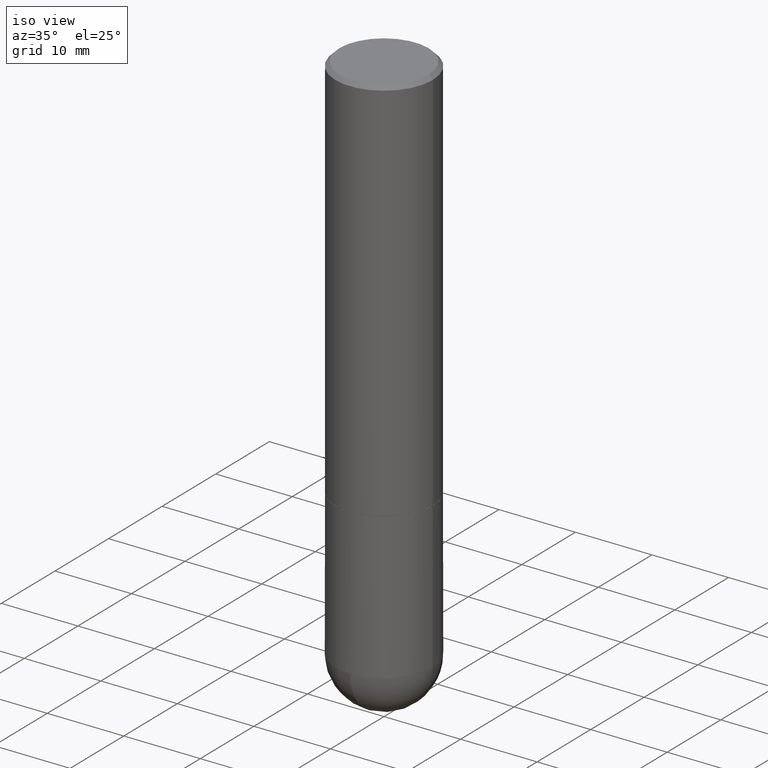
[diagram: clean part render]
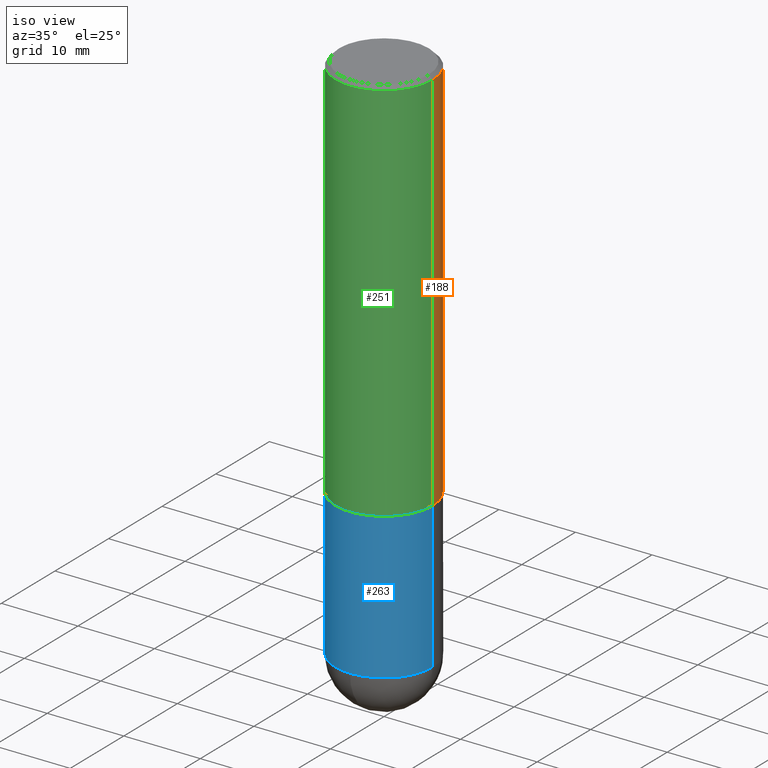
[diagram: same view with three faces highlighted in distinct colors, each labeled with its STEP entity id]
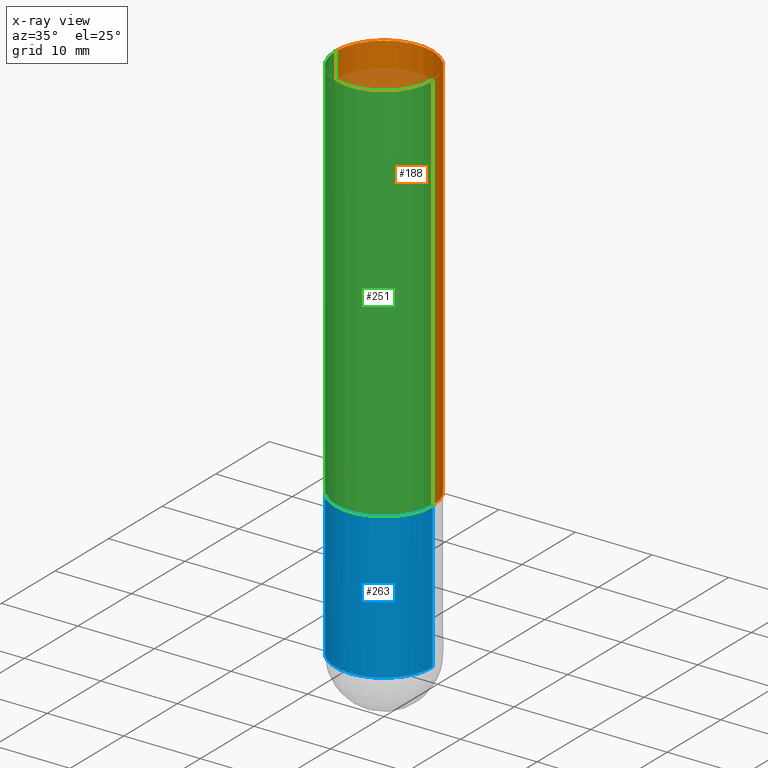
[diagram: x-ray of the same camera — body ghosted, the three highlighted faces saturated]
A machine part, iso view with three faces highlighted in distinct colors.
The next image is the same camera in x-ray (body ghosted, the three faces saturated) — at least one of them is partly hidden behind the body in this view.
Their STEP definitions:

[orange] entity #188 — the highlighted cylindrical surface (partial cylindrical patch) has radius 6.35 mm, axis along (-0, 0, 1).
#6 = EDGE_LOOP ( 'NONE', ( #29, #325, #299, #410 ) ) ;
#25 = CIRCLE ( 'NONE', #266, 0.2500000000000002776 ) ;
#29 = ORIENTED_EDGE ( 'NONE', *, *, #110, .T. ) ;
#40 = DIRECTION ( 'NONE',  ( -2.445468806185136597E-29, 3.491481338843145583E-15, 1.000000000000000000 ) ) ;
#41 = CARTESIAN_POINT ( 'NONE',  ( 0.2500000000000002776, -8.725211865769017202E-15, -1.999000000000000110 ) ) ;
#62 = EDGE_CURVE ( 'NONE', #120, #309, #204, .T. ) ;
#67 = VERTEX_POINT ( 'NONE', #135 ) ;
#73 = DIRECTION ( 'NONE',  ( 1.000000000000000000, -6.982962677686267499E-15, 4.876176775795936353E-29 ) ) ;
#78 = FACE_OUTER_BOUND ( 'NONE', #6, .T. ) ;
#79 = EDGE_CURVE ( 'NONE', #67, #229, #239, .T. ) ;
#104 = CARTESIAN_POINT ( 'NONE',  ( 0.2500000000000001110, -1.745740669421567664E-15, 1.219044193948984649E-29 ) ) ;
#110 = EDGE_CURVE ( 'NONE', #120, #67, #25, .T. ) ;
#112 = DIRECTION ( 'NONE',  ( -2.445468806185136597E-29, 3.491481338843145583E-15, 1.000000000000000000 ) ) ;
#120 = VERTEX_POINT ( 'NONE', #41 ) ;
#135 = CARTESIAN_POINT ( 'NONE',  ( -0.2500000000000002220, -1.748293572161901516E-15, -1.999000000000000110 ) ) ;
#178 = CARTESIAN_POINT ( 'NONE',  ( 0.000000000000000000, 0.000000000000000000, 0.000000000000000000 ) ) ;
#188 = ADVANCED_FACE ( 'NONE', ( #78 ), #373, .T. ) ;
#196 = VECTOR ( 'NONE', #199, 39.37007874015748143 ) ;
#199 = DIRECTION ( 'NONE',  ( -2.445468806185136877E-29, 3.491481338843145188E-15, 1.000000000000000000 ) ) ;
#204 = LINE ( 'NONE', #104, #196 ) ;
#214 = CARTESIAN_POINT ( 'NONE',  ( -0.2500000000000000000, 1.675911042644703577E-15, -0.02000000000000005593 ) ) ;
#220 = DIRECTION ( 'NONE',  ( -2.445468806185136597E-29, 3.491481338843145583E-15, 1.000000000000000000 ) ) ;
#229 = VERTEX_POINT ( 'NONE', #214 ) ;
#238 = CARTESIAN_POINT ( 'NONE',  ( 4.888492143564088712E-29, -6.979471196347448158E-15, -1.999000000000000110 ) ) ;
#239 = LINE ( 'NONE', #331, #336 ) ;
#248 = CARTESIAN_POINT ( 'NONE',  ( 4.890937612370287172E-31, -6.982962677686310098E-17, -0.02000000000000005593 ) ) ;
#256 = AXIS2_PLACEMENT_3D ( 'NONE', #178, #112, #73 ) ;
#265 = DIRECTION ( 'NONE',  ( -2.445468806185136877E-29, 3.491481338843145188E-15, 1.000000000000000000 ) ) ;
#266 = AXIS2_PLACEMENT_3D ( 'NONE', #238, #40, #335 ) ;
#297 = CIRCLE ( 'NONE', #332, 0.2500000000000000000 ) ;
#299 = ORIENTED_EDGE ( 'NONE', *, *, #302, .F. ) ;
#302 = EDGE_CURVE ( 'NONE', #309, #229, #297, .T. ) ;
#309 = VERTEX_POINT ( 'NONE', #390 ) ;
#325 = ORIENTED_EDGE ( 'NONE', *, *, #79, .T. ) ;
#331 = CARTESIAN_POINT ( 'NONE',  ( -0.2500000000000001110, 1.776356839400251254E-15, -1.229733772563727146E-29 ) ) ;
#332 = AXIS2_PLACEMENT_3D ( 'NONE', #248, #220, #344 ) ;
#335 = DIRECTION ( 'NONE',  ( 1.000000000000000000, -6.982962677686266711E-15, 0.000000000000000000 ) ) ;
#336 = VECTOR ( 'NONE', #265, 39.37007874015748143 ) ;
#344 = DIRECTION ( 'NONE',  ( 1.000000000000000000, -6.982962677686266711E-15, 0.000000000000000000 ) ) ;
#373 = CYLINDRICAL_SURFACE ( 'NONE', #256, 0.2500000000000001110 ) ;
#390 = CARTESIAN_POINT ( 'NONE',  ( 0.2500000000000000000, -1.784954126219746189E-15, -0.02000000000000005593 ) ) ;
#410 = ORIENTED_EDGE ( 'NONE', *, *, #62, .F. ) ;

[blue] entity #263 — the highlighted cylindrical surface (partial cylindrical patch) has radius 6.35 mm, axis along (-0, 0, 1).
#1 = EDGE_CURVE ( 'NONE', #34, #349, #31, .T. ) ;
#9 = CARTESIAN_POINT ( 'NONE',  ( 6.725039217009124520E-29, -9.601573681818649859E-15, -2.750000000000000000 ) ) ;
#10 = ORIENTED_EDGE ( 'NONE', *, *, #87, .T. ) ;
#18 = LINE ( 'NONE', #401, #145 ) ;
#19 = DIRECTION ( 'NONE',  ( -2.445468806185136597E-29, 3.491481338843145583E-15, 1.000000000000000000 ) ) ;
#31 = CIRCLE ( 'NONE', #393, 0.2500000000000000000 ) ;
#34 = VERTEX_POINT ( 'NONE', #387 ) ;
#42 = FACE_OUTER_BOUND ( 'NONE', #64, .T. ) ;
#45 = DIRECTION ( 'NONE',  ( 1.000000000000000000, -6.982962677686266711E-15, 4.876176775795935793E-29 ) ) ;
#64 = EDGE_LOOP ( 'NONE', ( #228, #168, #10, #159, #129 ) ) ;
#71 = DIRECTION ( 'NONE',  ( -2.445468806185136597E-29, 3.491481338843145583E-15, 1.000000000000000000 ) ) ;
#72 = CIRCLE ( 'NONE', #116, 0.2500000000000000000 ) ;
#75 = CARTESIAN_POINT ( 'NONE',  ( -0.2500000000000000000, -6.515911340352222020E-15, -2.750000000000000000 ) ) ;
#83 = CARTESIAN_POINT ( 'NONE',  ( 0.000000000000000000, 0.000000000000000000, 0.000000000000000000 ) ) ;
#87 = EDGE_CURVE ( 'NONE', #231, #121, #72, .T. ) ;
#96 = AXIS2_PLACEMENT_3D ( 'NONE', #246, #367, #153 ) ;
#107 = CARTESIAN_POINT ( 'NONE',  ( -0.2500000000000000000, 1.776356839400250465E-15, -1.229733772563726445E-29 ) ) ;
#111 = DIRECTION ( 'NONE',  ( -2.445468806185136877E-29, 3.491481338843145188E-15, 1.000000000000000000 ) ) ;
#116 = AXIS2_PLACEMENT_3D ( 'NONE', #9, #71, #354 ) ;
#121 = VERTEX_POINT ( 'NONE', #388 ) ;
#129 = ORIENTED_EDGE ( 'NONE', *, *, #1, .F. ) ;
#145 = VECTOR ( 'NONE', #111, 39.37007874015748143 ) ;
#153 = DIRECTION ( 'NONE',  ( 1.000000000000000000, -6.982962677686262766E-15, 0.000000000000000000 ) ) ;
#159 = ORIENTED_EDGE ( 'NONE', *, *, #170, .T. ) ;
#168 = ORIENTED_EDGE ( 'NONE', *, *, #395, .T. ) ;
#170 = EDGE_CURVE ( 'NONE', #121, #349, #18, .T. ) ;
#175 = EDGE_CURVE ( 'NONE', #328, #34, #397, .T. ) ;
#192 = AXIS2_PLACEMENT_3D ( 'NONE', #83, #19, #45 ) ;
#228 = ORIENTED_EDGE ( 'NONE', *, *, #175, .F. ) ;
#231 = VERTEX_POINT ( 'NONE', #340 ) ;
#246 = CARTESIAN_POINT ( 'NONE',  ( 6.725039217009124520E-29, -9.601573681818649859E-15, -2.750000000000000000 ) ) ;
#263 = ADVANCED_FACE ( 'NONE', ( #42 ), #315, .T. ) ;
#270 = CARTESIAN_POINT ( 'NONE',  ( 4.890937612370273754E-29, -6.982962677686291954E-15, -2.000000000000000444 ) ) ;
#288 = DIRECTION ( 'NONE',  ( -2.445468806185136877E-29, 3.491481338843145188E-15, 1.000000000000000000 ) ) ;
#290 = CIRCLE ( 'NONE', #96, 0.2500000000000000000 ) ;
#315 = CYLINDRICAL_SURFACE ( 'NONE', #192, 0.2500000000000000000 ) ;
#328 = VERTEX_POINT ( 'NONE', #75 ) ;
#340 = CARTESIAN_POINT ( 'NONE',  ( -1.776356839400184989E-15, -0.2500000000000098810, -2.749999999999998668 ) ) ;
#345 = CARTESIAN_POINT ( 'NONE',  ( 0.2500000000000000000, -8.728703347107858632E-15, -2.000000000000000444 ) ) ;
#349 = VERTEX_POINT ( 'NONE', #345 ) ;
#354 = DIRECTION ( 'NONE',  ( 1.000000000000000000, -6.982962677686262766E-15, 0.000000000000000000 ) ) ;
#355 = DIRECTION ( 'NONE',  ( -2.445468806185136597E-29, 3.491481338843145583E-15, 1.000000000000000000 ) ) ;
#367 = DIRECTION ( 'NONE',  ( -2.445468806185136597E-29, 3.491481338843145583E-15, 1.000000000000000000 ) ) ;
#379 = VECTOR ( 'NONE', #288, 39.37007874015748143 ) ;
#387 = CARTESIAN_POINT ( 'NONE',  ( -0.2500000000000000000, -6.515911340352220442E-15, -2.000000000000000444 ) ) ;
#388 = CARTESIAN_POINT ( 'NONE',  ( 0.2500000000000000000, -1.003800884917403995E-14, -2.750000000000000000 ) ) ;
#389 = DIRECTION ( 'NONE',  ( 1.000000000000000000, -6.982962677686266711E-15, 0.000000000000000000 ) ) ;
#393 = AXIS2_PLACEMENT_3D ( 'NONE', #270, #355, #389 ) ;
#395 = EDGE_CURVE ( 'NONE', #328, #231, #290, .T. ) ;
#397 = LINE ( 'NONE', #107, #379 ) ;
#401 = CARTESIAN_POINT ( 'NONE',  ( 0.2500000000000000000, -1.745740669421566678E-15, 1.219044193948983948E-29 ) ) ;

[green] entity #251 — the highlighted cylindrical surface (partial cylindrical patch) has radius 6.35 mm, axis along (-0, 0, 1).
#8 = ORIENTED_EDGE ( 'NONE', *, *, #62, .T. ) ;
#15 = CIRCLE ( 'NONE', #372, 0.2500000000000000000 ) ;
#32 = ORIENTED_EDGE ( 'NONE', *, *, #301, .F. ) ;
#41 = CARTESIAN_POINT ( 'NONE',  ( 0.2500000000000002776, -8.725211865769017202E-15, -1.999000000000000110 ) ) ;
#48 = CYLINDRICAL_SURFACE ( 'NONE', #275, 0.2500000000000001110 ) ;
#62 = EDGE_CURVE ( 'NONE', #120, #309, #204, .T. ) ;
#67 = VERTEX_POINT ( 'NONE', #135 ) ;
#79 = EDGE_CURVE ( 'NONE', #67, #229, #239, .T. ) ;
#94 = EDGE_LOOP ( 'NONE', ( #352, #235, #8, #32 ) ) ;
#104 = CARTESIAN_POINT ( 'NONE',  ( 0.2500000000000001110, -1.745740669421567664E-15, 1.219044193948984649E-29 ) ) ;
#120 = VERTEX_POINT ( 'NONE', #41 ) ;
#135 = CARTESIAN_POINT ( 'NONE',  ( -0.2500000000000002220, -1.748293572161901516E-15, -1.999000000000000110 ) ) ;
#149 = DIRECTION ( 'NONE',  ( -2.445468806185136597E-29, 3.491481338843145583E-15, 1.000000000000000000 ) ) ;
#196 = VECTOR ( 'NONE', #199, 39.37007874015748143 ) ;
#199 = DIRECTION ( 'NONE',  ( -2.445468806185136877E-29, 3.491481338843145188E-15, 1.000000000000000000 ) ) ;
#204 = LINE ( 'NONE', #104, #196 ) ;
#211 = DIRECTION ( 'NONE',  ( -2.445468806185136597E-29, 3.491481338843145583E-15, 1.000000000000000000 ) ) ;
#214 = CARTESIAN_POINT ( 'NONE',  ( -0.2500000000000000000, 1.675911042644703577E-15, -0.02000000000000005593 ) ) ;
#216 = CARTESIAN_POINT ( 'NONE',  ( 0.000000000000000000, 0.000000000000000000, 0.000000000000000000 ) ) ;
#229 = VERTEX_POINT ( 'NONE', #214 ) ;
#235 = ORIENTED_EDGE ( 'NONE', *, *, #382, .T. ) ;
#239 = LINE ( 'NONE', #331, #336 ) ;
#251 = ADVANCED_FACE ( 'NONE', ( #368 ), #48, .T. ) ;
#253 = CARTESIAN_POINT ( 'NONE',  ( 4.890937612370287172E-31, -6.982962677686310098E-17, -0.02000000000000005593 ) ) ;
#265 = DIRECTION ( 'NONE',  ( -2.445468806185136877E-29, 3.491481338843145188E-15, 1.000000000000000000 ) ) ;
#267 = AXIS2_PLACEMENT_3D ( 'NONE', #398, #364, #404 ) ;
#275 = AXIS2_PLACEMENT_3D ( 'NONE', #216, #211, #341 ) ;
#285 = DIRECTION ( 'NONE',  ( 1.000000000000000000, -6.982962677686266711E-15, 0.000000000000000000 ) ) ;
#301 = EDGE_CURVE ( 'NONE', #229, #309, #15, .T. ) ;
#309 = VERTEX_POINT ( 'NONE', #390 ) ;
#331 = CARTESIAN_POINT ( 'NONE',  ( -0.2500000000000001110, 1.776356839400251254E-15, -1.229733772563727146E-29 ) ) ;
#336 = VECTOR ( 'NONE', #265, 39.37007874015748143 ) ;
#341 = DIRECTION ( 'NONE',  ( 1.000000000000000000, -6.982962677686267499E-15, 4.876176775795936353E-29 ) ) ;
#352 = ORIENTED_EDGE ( 'NONE', *, *, #79, .F. ) ;
#360 = CIRCLE ( 'NONE', #267, 0.2500000000000002776 ) ;
#364 = DIRECTION ( 'NONE',  ( -2.445468806185136597E-29, 3.491481338843145583E-15, 1.000000000000000000 ) ) ;
#368 = FACE_OUTER_BOUND ( 'NONE', #94, .T. ) ;
#372 = AXIS2_PLACEMENT_3D ( 'NONE', #253, #149, #285 ) ;
#382 = EDGE_CURVE ( 'NONE', #67, #120, #360, .T. ) ;
#390 = CARTESIAN_POINT ( 'NONE',  ( 0.2500000000000000000, -1.784954126219746189E-15, -0.02000000000000005593 ) ) ;
#398 = CARTESIAN_POINT ( 'NONE',  ( 4.888492143564088712E-29, -6.979471196347448158E-15, -1.999000000000000110 ) ) ;
#404 = DIRECTION ( 'NONE',  ( 1.000000000000000000, -6.982962677686266711E-15, 0.000000000000000000 ) ) ;